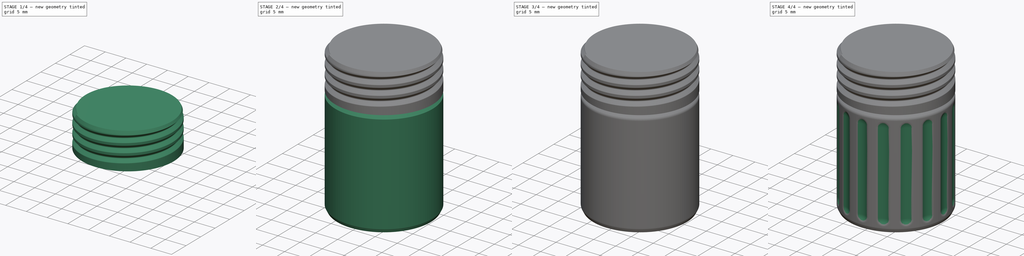
[diagram: build sequence overview — one tinted view per stage of 4, left to right]
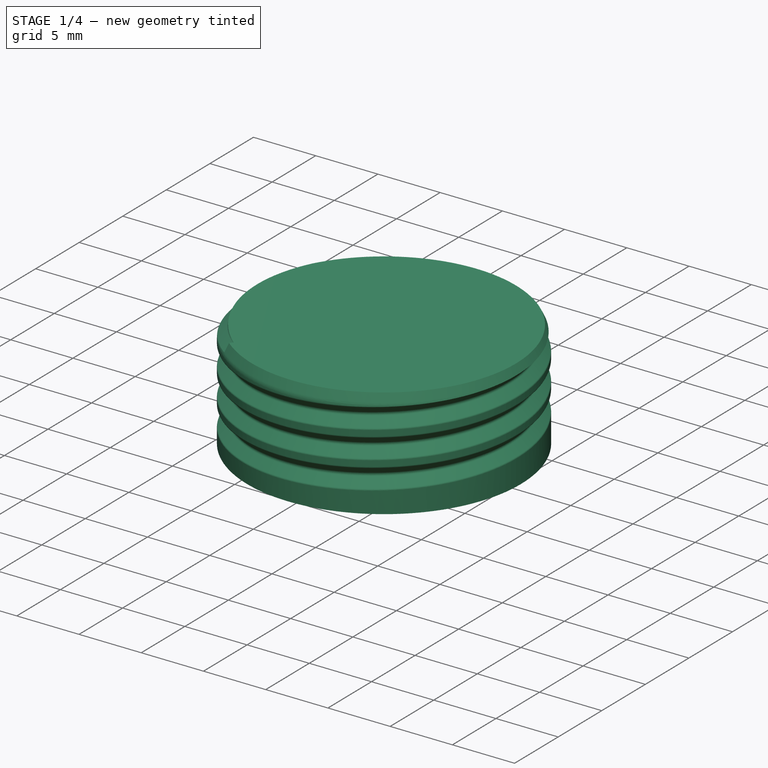
[diagram: stage 1 of 4 — iso view after this stage's code; geometry added in this stage tinted green]
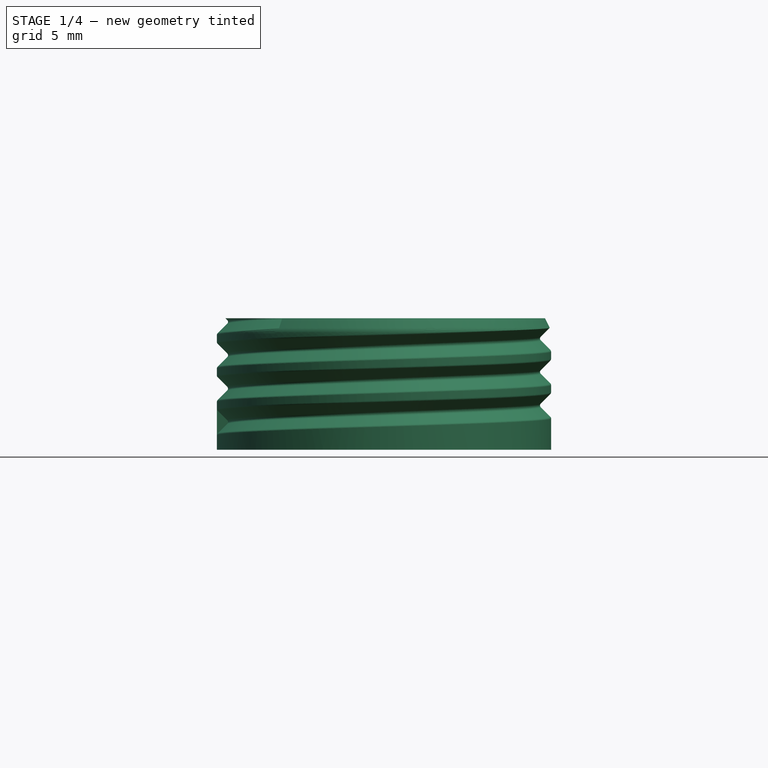
[diagram: stage 1 of 4 — front view after this stage's code; geometry added in this stage tinted green]
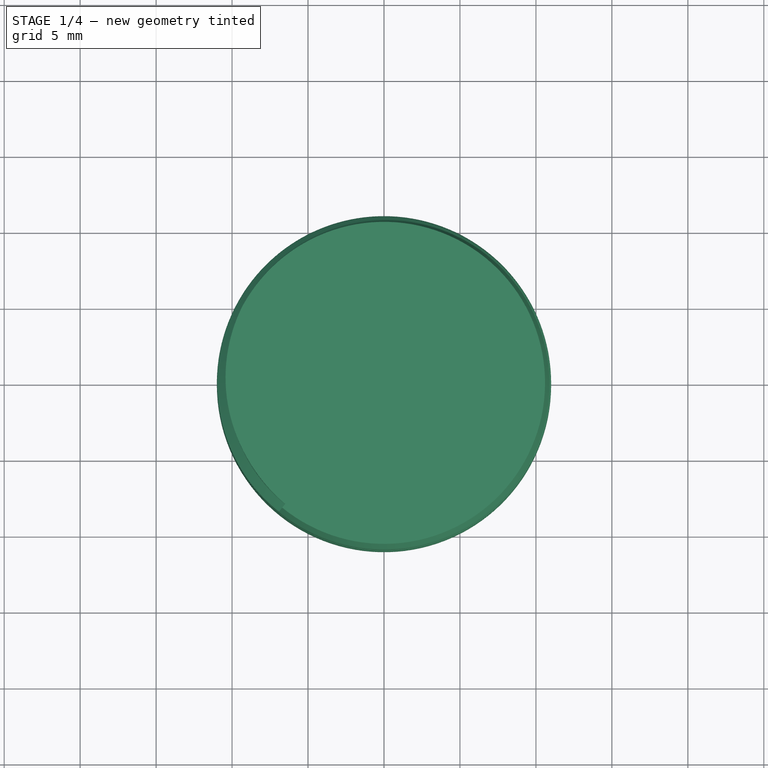
[diagram: stage 1 of 4 — top view after this stage's code; geometry added in this stage tinted green]
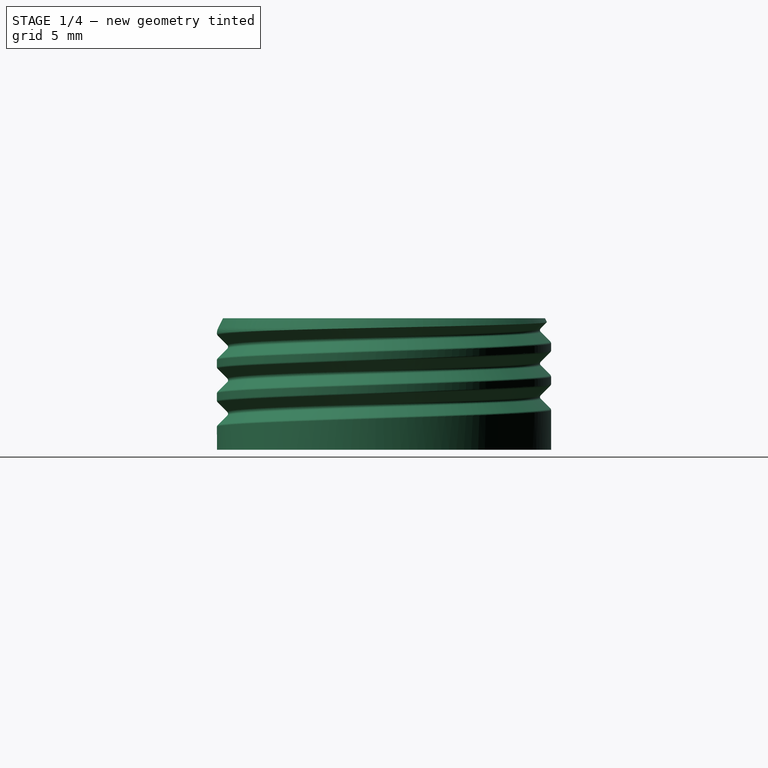
[diagram: stage 1 of 4 — right view after this stage's code; geometry added in this stage tinted green]
FCSTD DOCUMENT  (FreeCAD 1.1R44795 (Git))
Label: VaseModeJar
License: All rights reserved
LicenseURL: http://en.wikipedia.org/wiki/All_rights_reserved
objects: Sketcher::SketchObject×9, PartDesign::Body×4, App::Point×4, PartDesign::Revolution×3, PartDesign::Fillet×3, PartDesign::ShapeBinder×2, PartDesign::SubShapeBinder×2, PartDesign::SubtractiveHelix×2, Spreadsheet::Sheet×1, PartDesign::Pad×1, PartDesign::Groove×1, PartDesign::PolarPattern×1
note: 58 computed .brp shape members not serialized (recipe doc carries the construction recipe); baked Part::Feature solids carry a one-line shape summary decoded from their .brp

FEATURE [Sketcher::SketchObject] Sketch  label="Template_F"
  ArcFitTolerance = 1e-06
  AttachmentSupport = -> [XZ_Plane]
  ExternalTypes = [0]
  FullyConstrained = true
  MakeInternals = false
  MapMode = 5
  Placement = pos=(0,0,0) rot=(1,0,0;1.5708rad)
  _ExternalGeoVersion = 0
  expr: .Constraints.BottomSlopeHeight = <<Spreadsheet>>.WallThickness + <<Spreadsheet>>.Tolerance
  expr: .Constraints.CapBase = <<Spreadsheet>>.Diameter / 2
  expr: .Constraints.Height = <<Spreadsheet>>.BottomHeight + <<Spreadsheet>>.TopHeight
  expr: .Constraints.NeckBase = <<Spreadsheet>>.Diameter / 2 - <<Spreadsheet>>.WallThickness - <<Spreadsheet>>.Tolerance
  expr: Constraints[11] = <<Spreadsheet>>.TopHeight + <<Spreadsheet>>.BaseThickness
  expr: Constraints[12] = <<Spreadsheet>>.TopHeight + <<Spreadsheet>>.BaseThickness - <<Spreadsheet>>.Tolerance
  expr: Constraints[20] = <<Spreadsheet>>.BottomHeight - <<Spreadsheet>>.BaseThickness
  expr: Constraints[23] = <<Spreadsheet>>.TopHeight - <<Spreadsheet>>.BaseThickness
  expr: Constraints[31] = <<Spreadsheet>>.Diameter / 2 - <<Spreadsheet>>.BaseThickness / 2
  expr: Constraints[35] = <<Spreadsheet>>.TopHeight
  sketch-geometry (18):
    g0: LineSegment StartX=-10.6 StartY=-24.15 StartZ=0 EndX=0 EndY=-24.15 EndZ=0
    g1: LineSegment StartX=0 StartY=8.65 StartZ=0 EndX=0 EndY=0 EndZ=0
    g2: LineSegment StartX=0 StartY=0 StartZ=0 EndX=-11 EndY=0 EndZ=0
    g3: LineSegment StartX=-10.6 StartY=8.65 StartZ=0 EndX=0 EndY=8.65 EndZ=0
    g4: LineSegment StartX=0 StartY=7.85 StartZ=0 EndX=-9.85 EndY=7.85 EndZ=0
    g5: LineSegment [constr] StartX=-11 StartY=-0.15 StartZ=0 EndX=-10.25 EndY=-0.15 EndZ=0
    g6: LineSegment [constr] StartX=-11 StartY=-0.15 StartZ=0 EndX=-11 EndY=-0.9 EndZ=0
    g7: LineSegment StartX=-11 StartY=-0.9 StartZ=0 EndX=-10.25 EndY=-0.15 EndZ=0
    g8: LineSegment StartX=-11 StartY=-0.9 StartZ=0 EndX=-11 EndY=-23.35 EndZ=0
    g9: LineSegment StartX=-11 StartY=-23.35 StartZ=0 EndX=-10.6 EndY=-24.15 EndZ=0
    g10: LineSegment StartX=-9.85 StartY=7.85 StartZ=0 EndX=-10.25 EndY=7.05 EndZ=0
    g11: LineSegment StartX=-10.25 StartY=7.05 StartZ=0 EndX=-10.25 EndY=-0.15 EndZ=0
    g12: LineSegment [constr] StartX=-11 StartY=-0.15 StartZ=0 EndX=-11 EndY=0 EndZ=0
    g13: LineSegment StartX=-11 StartY=0 StartZ=0 EndX=-11 EndY=7.85 EndZ=0
    g14: LineSegment StartX=-11 StartY=7.85 StartZ=0 EndX=-10.6 EndY=8.65 EndZ=0
    g15: LineSegment [constr] StartX=-11 StartY=7.85 StartZ=0 EndX=-9.85 EndY=7.85 EndZ=0
    g16: LineSegment StartX=0 StartY=0 StartZ=0 EndX=0 EndY=-24.15 EndZ=0
    g17: LineSegment StartX=0 StartY=-0.15 StartZ=0 EndX=-10.25 EndY=-0.15 EndZ=0
  constraints (52):
    c: Horizontal(g0)
    c: DistanceY(g0,g4) = 32  'Height'
    c: Coincident(g0,g16)
    c: Horizontal(g3)
    c: Horizontal(g4)
    c: Coincident(g14,g3)
    c: Coincident(g10,g4)
    c: Coincident(g9,g0)
    c: Coincident(g5,g6)
    c: Coincident(g5,g11)
    c: Horizontal(g5)
    c: DistanceY(g6,g14) = 8.8
    c: DistanceY(g13,g14) = 8.65
    c: Coincident(g2,g-1)  '__ANCHOR__'
    c: Coincident(g6,g8)
    c: Vertical(g6)
    c: Coincident(g7,g6)
    c: Coincident(g7,g11)
    c: Coincident(g8,g9)
    c: Vertical(g8)
    c: DistanceY(g8,g5) = 23.2
    c: Coincident(g10,g11)
    c: Vertical(g11)
    c: DistanceY(g5,g10) = 7.2
    c: DistanceX(g10,g3) = 10.25  'NeckBase'
    c: Coincident(g12,g5)
    c: Coincident(g12,g13)
    c: Vertical(g12)
    c: Coincident(g13,g14)
    c: Vertical(g13)
    c: DistanceX(g13,g3) = 11  'CapBase'
    c: DistanceX(g3,g3) = 10.6
    c: Coincident(g15,g13)
    c: Coincident(g15,g4)
    c: Horizontal(g15)
    c: DistanceY(g5,g13) = 8
    c: DistanceY(g5,g13) = 0.15
    c: DistanceY(g13,g3) = 0.8
    c: DistanceY(g6,g6) = 0.75  'BottomSlopeHeight'
    c: Vertical(g16)
    c: Horizontal(g2)
    c: Vertical(g1)
    c: Coincident(g2,g1)
    c: Coincident(g17,g5)
    c: Horizontal(g17)
    c: Coincident(g1,g16)
    c: PointOnObject(g17,g16)
    c: Coincident(g1,g3)
    c: PointOnObject(g4,g1)
    c: Coincident(g2,g12)
    c: Equal(g0,g3)
    c: Parallel(g10,g14)
FEATURE [Spreadsheet::Sheet] Spreadsheet
  cells = A1='Variant; B1='WallThickness; C1='BaseThickness; D1='Tolerance; E1='BottomHeight; F1='TopHeight; G1='Diameter; H1='Pitch; I1='PDR; J1='CapORingThickness; K1='SpiralGap; A2==hiddenref(Body.Configuration.String); B2(WallThickness)==.B4; C2(BaseThickness)==.C4; D2(Tolerance)==.D4; E2(BottomHeight)==.E4; F2(TopHeight)==.F4; G2(Diameter)==.G4; H2(Pitch)==.H4; I2(PDR)==.I4; J2(CapORingThickness)==.J4; K2(SpiralGap)==.K4; A3='Jar; B3==1 mm; C3==1.2 mm; D3==0.15 mm; E3==18 mm; F3==16 mm; G3==56 mm; H3==4.6 mm; I3=4; J3==1.2 mm; K3==0.002 mm; A4='Capsule; B4==0.6 mm; C4==0.8 mm; D4==0.15 mm; E4==24 mm; F4==8 mm; G4==22 mm; H4==2.2 mm; I4=3; J4==0 mm; K4==0.002 mm
  expr: .cells.Bind.B2.K2 = tuple(.cells; <<B>> + str(hiddenref(Body.Configuration) + 3); <<K>> + str(hiddenref(Body.Configuration) + 3))
FEATURE [PartDesign::ShapeBinder] ShapeBinder001
  Placement = pos=(0,0,0) rot=(1,0,0;1.5708rad)
  Support = -> [Sketch]
  TraceSupport = false
FEATURE [Sketcher::SketchObject] Sketch003
  ArcFitTolerance = 1e-06
  AttachmentSupport = -> [XZ_Plane002]
  ExternalGeometry = -> [ShapeBinder001]
  ExternalTypes = [0,0,0,0,0]
  FullyConstrained = true
  MakeInternals = false
  MapMode = 5
  Placement = pos=(0,0,0) rot=(1,0,0;1.5708rad)
  _ExternalGeoVersion = 0
FEATURE [PartDesign::Revolution] Revolution001
  Angle = 360
  Angle2 = 60
  Axis = (0,2e-16,1)
  Base = (0,0,0)
  FuseOrder = 1
  Placement = pos=(0,0,0) rot=(1,0,0;1.5708rad)
  Profile = -> Sketch003
  ReferenceAxis = -> Sketch003 [V_Axis]
  Suppressed = false
  Type = 0
FEATURE [PartDesign::Body] Body004  label="Bottom"
  AllowCompound = false
  Group = -> [ShapeBinder002,Binder002,Sketch008,Revolution002,Sketch009,SubtractiveHelix002,Sketch010,Revolution003,Sketch011,Fillet003,Groove001,Fillet004,PolarPattern001]
  Origin = -> Origin008
  Tip = -> PolarPattern001
FEATURE [PartDesign::Fillet] Fillet002
  Base = -> Revolution001 [Edge2]
  BaseFeature = -> Revolution001
  Placement = pos=(0,0,0) rot=(1,0,0;1.5708rad)
  Radius = 0.8
  SupportTransform = false
  Suppressed = false
  UseAllEdges = false
  expr: Radius = <<Spreadsheet>>.BaseThickness
FEATURE [PartDesign::SubtractiveHelix] SubtractiveHelix003
  Angle = 0
  Axis = (0,2e-16,1)
  Base = (0,0,0)
  BaseFeature = -> Fillet002
  Growth = 0
  HasBeenEdited = true
  Height = 6.9104
  LeftHanded = false
  Mode = 0
  Outside = false
  Pitch = 2.2
  Placement = pos=(0,0,0) rot=(1,0,0;1.5708rad)
  Profile = -> Sketch004
  ReferenceAxis = -> Sketch004 [V_Axis]
  Refine = true
  Suppressed = false
  Tolerance = 0.1
  Turns = 3.14109
  expr: Height = <<Spreadsheet>>.TopHeight - <<Template_Th>>.Constraints.CapThreadOffset - <<Spreadsheet>>.Tolerance - (<<Spreadsheet>>.CapORingThickness > 0 ? <<Template_Th>>.Constraints.CapThreadHeight + <<Spreadsheet>>.CapORingThickness : 0 mm)
  expr: Pitch = <<Spreadsheet>>.Pitch
FEATURE [PartDesign::Body] Body002  label="Top"
  AllowCompound = false
  Group = -> [ShapeBinder001,Binder001,Sketch003,Revolution001,Fillet002,Sketch004,SubtractiveHelix003]
  Origin = -> Origin002
  Tip = -> SubtractiveHelix003
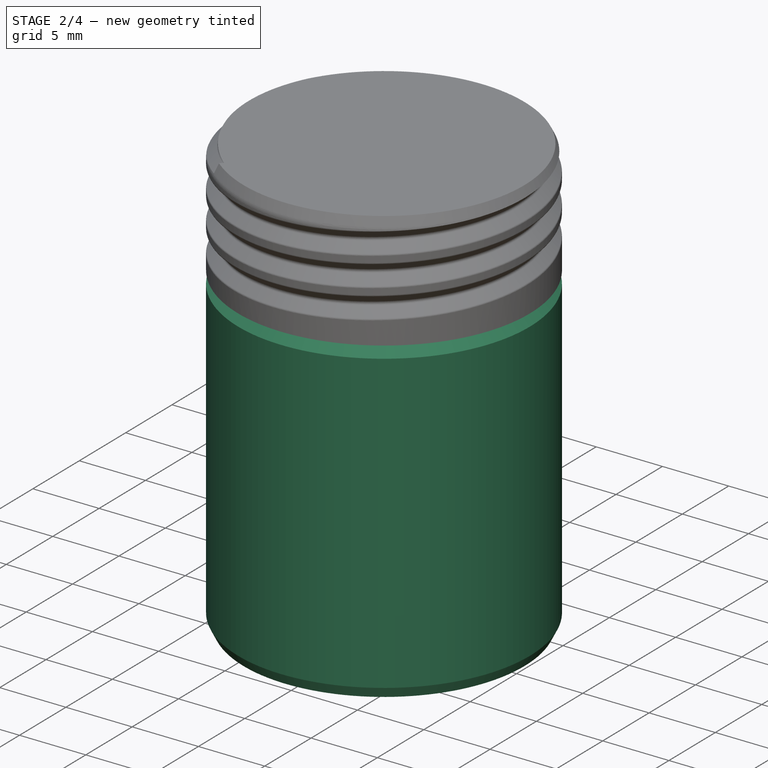
[diagram: stage 2 of 4 — iso view after this stage's code; geometry added in this stage tinted green]
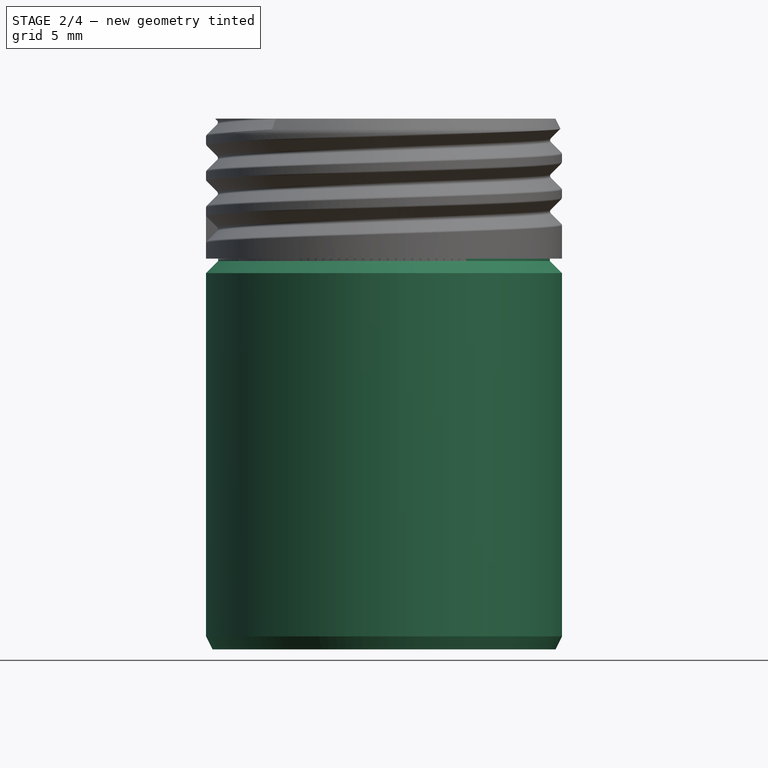
[diagram: stage 2 of 4 — front view after this stage's code; geometry added in this stage tinted green]
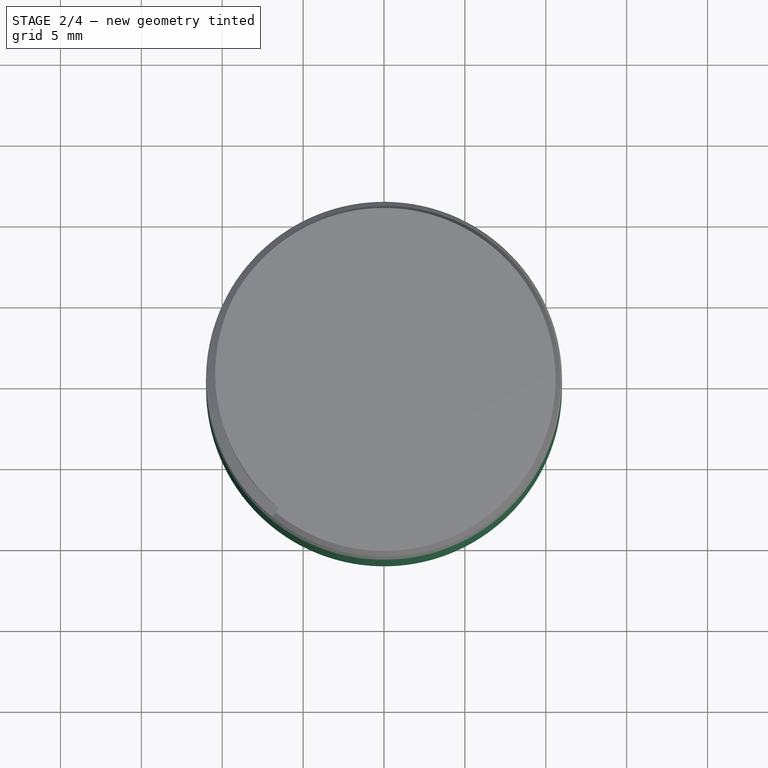
[diagram: stage 2 of 4 — top view after this stage's code; geometry added in this stage tinted green]
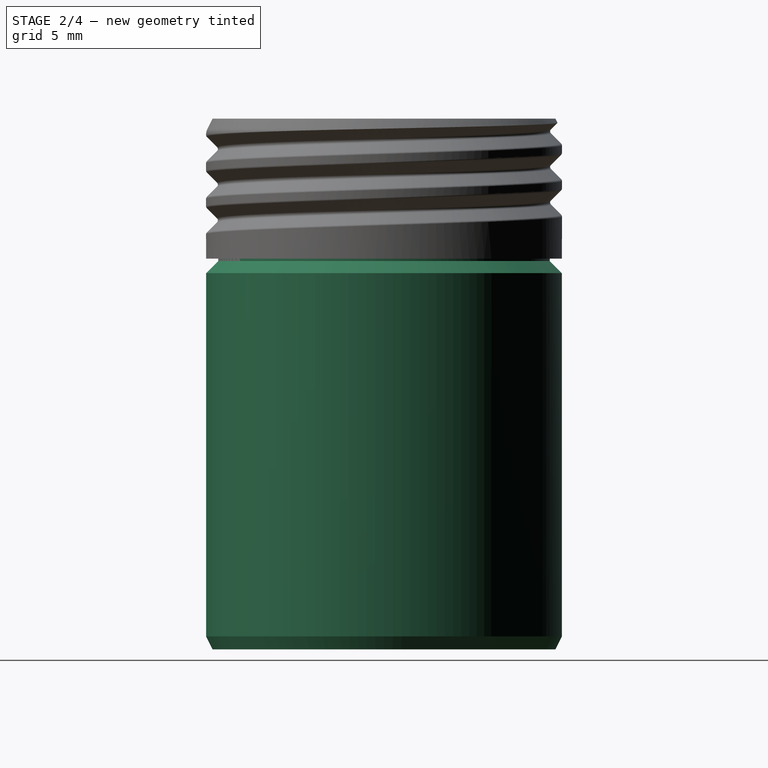
[diagram: stage 2 of 4 — right view after this stage's code; geometry added in this stage tinted green]
FEATURE [PartDesign::Body] Body003  label="ORing"
  AllowCompound = false
  Group = -> [Sketch007,Pad]
  Origin = -> Origin003
  Tip = -> Pad
FEATURE [App::Point] Origin004  label="Origin"
  Role = Origin
FEATURE [App::Point] Origin006  label="Origin"
  Role = Origin
FEATURE [App::Point] Origin007  label="Origin"
  Role = Origin
FEATURE [PartDesign::ShapeBinder] ShapeBinder002
  Placement = pos=(0,0,0) rot=(1,0,0;1.5708rad)
  Support = -> [Sketch]
  TraceSupport = false
FEATURE [PartDesign::SubShapeBinder] Binder002
  BindCopyOnChange = 0
  BindMode = 0
  ClaimChildren = false
  Context = -> Body004 [Binder002.]
  Fuse = false
  MakeFace = false
  OffsetFill = false
  OffsetIntersection = false
  OffsetJoinType = 0
  OffsetOpenResult = false
  PartialLoad = false
  Placement = pos=(-11,0,0) rot=(0,0,1;0rad)
  Relative = true
  Support = -> [Body[Sketch005.]]
  _Version = 2
  expr: .Placement.Base.x = -<<Spreadsheet>>.Diameter / 2
FEATURE [App::Point] Origin009
  Role = Origin
FEATURE [Sketcher::SketchObject] Sketch008
  ArcFitTolerance = 1e-06
  AttachmentSupport = -> [Origin008]
  ExternalGeometry = -> [ShapeBinder002]
  ExternalTypes = [0,0,0,0]
  FullyConstrained = true
  MakeInternals = true
  MapMode = 5
  Placement = pos=(0,0,0) rot=(1,0,0;1.5708rad)
  _ExternalGeoVersion = 1
  sketch-geometry (1):
    g0: LineSegment StartX=0 StartY=7.85 StartZ=0 EndX=0 EndY=-0.15 EndZ=0
  constraints (2):
    c: Coincident(g0,g-3)
    c: Coincident(g0,g-6)
FEATURE [PartDesign::Revolution] Revolution002
  Angle = 360
  Angle2 = 0
  Axis = (0,2e-16,1)
  Base = (0,0,0)
  FuseOrder = 0
  Profile = -> Sketch008
  ReferenceAxis = -> Sketch008 [V_Axis]
  Refine = true
  Suppressed = false
  Type = 0
FEATURE [Sketcher::SketchObject] Sketch009
  ArcFitTolerance = 1e-06
  AttachmentSupport = -> [Origin008]
  ExternalGeometry = -> [Binder002]
  ExternalTypes = [0,0,0,0,0,0,0,0,0,0]
  FullyConstrained = true
  MakeInternals = false
  MapMode = 5
  Placement = pos=(0,0,0) rot=(1,0,0;1.5708rad)
  _ExternalGeoVersion = 1
FEATURE [PartDesign::SubtractiveHelix] SubtractiveHelix002
  Angle = 0
  Axis = (0,2e-16,1)
  Base = (0,0,0)
  BaseFeature = -> Revolution002
  Growth = 0
  HasBeenEdited = true
  Height = 9
  LeftHanded = false
  Mode = 0
  Outside = false
  Pitch = 2.2
  Profile = -> Sketch009
  ReferenceAxis = -> Sketch009 [V_Axis]
  Refine = true
  Suppressed = false
  Tolerance = 0.1
  Turns = 4.09091
  expr: Height = <<Spreadsheet>>.TopHeight + 1 mm
  expr: Pitch = <<Spreadsheet>>.Pitch
FEATURE [Sketcher::SketchObject] Sketch010
  ArcFitTolerance = 1e-06
  AttachmentSupport = -> [Origin008]
  ExternalGeometry = -> [ShapeBinder002]
  ExternalTypes = [0,0,0,0,0]
  FullyConstrained = true
  MakeInternals = false
  MapMode = 5
  Placement = pos=(0,0,0) rot=(1,0,0;1.5708rad)
  _ExternalGeoVersion = 1
  sketch-geometry (1):
    g0: LineSegment StartX=0 StartY=-0.15 StartZ=0 EndX=0 EndY=-24.15 EndZ=0
  constraints (2):
    c: Coincident(g0,g-3)
    c: Coincident(g0,g-7)
FEATURE [PartDesign::Revolution] Revolution003
  Angle = 360
  Angle2 = 0
  Axis = (0,2e-16,1)
  Base = (0,0,0)
  BaseFeature = -> SubtractiveHelix002
  FuseOrder = 0
  Profile = -> Sketch010
  ReferenceAxis = -> Sketch010 [V_Axis]
  Refine = true
  Suppressed = false
  Type = 0
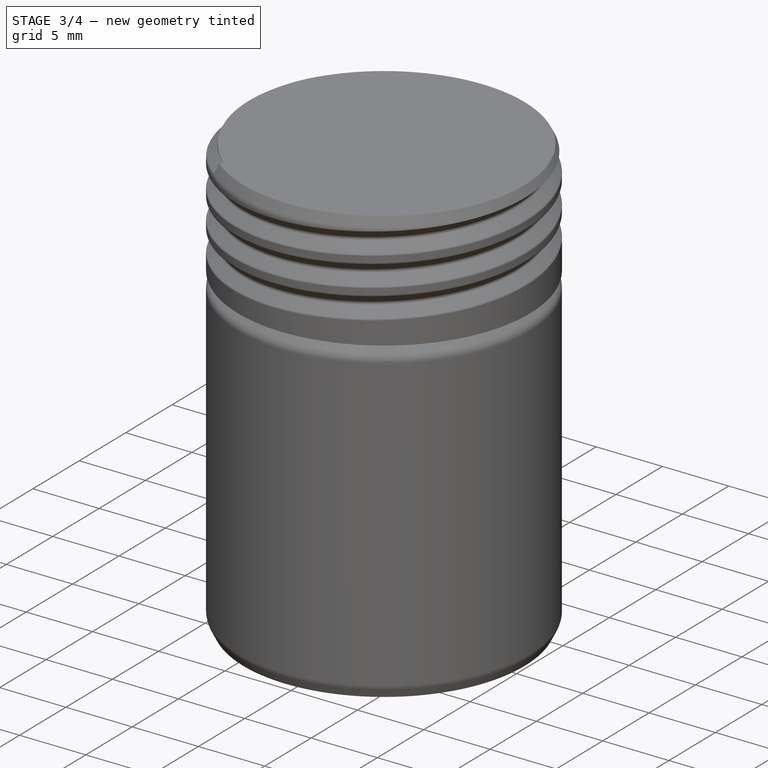
[diagram: stage 3 of 4 — iso view after this stage's code; geometry added in this stage tinted green]
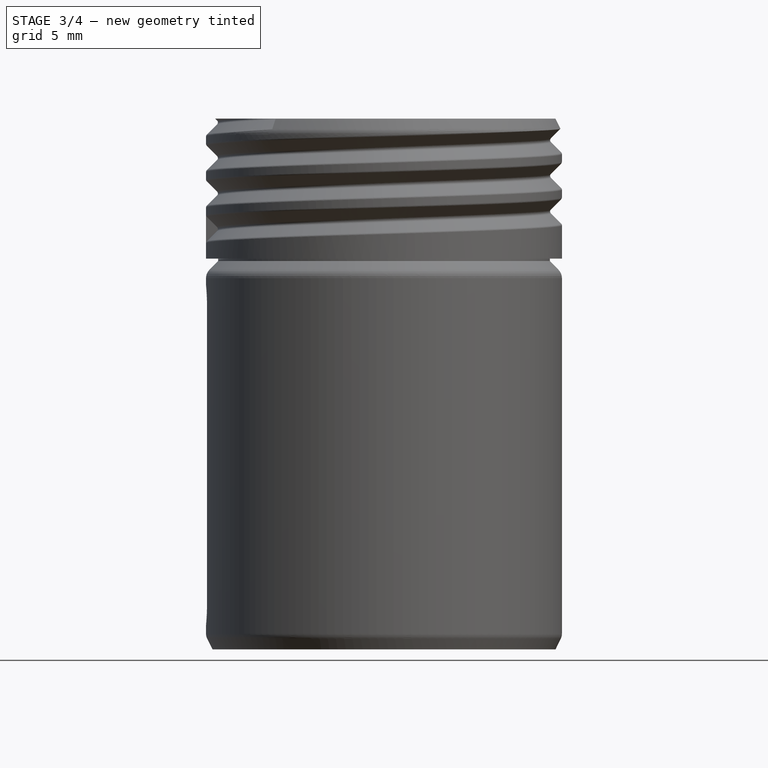
[diagram: stage 3 of 4 — front view after this stage's code; geometry added in this stage tinted green]
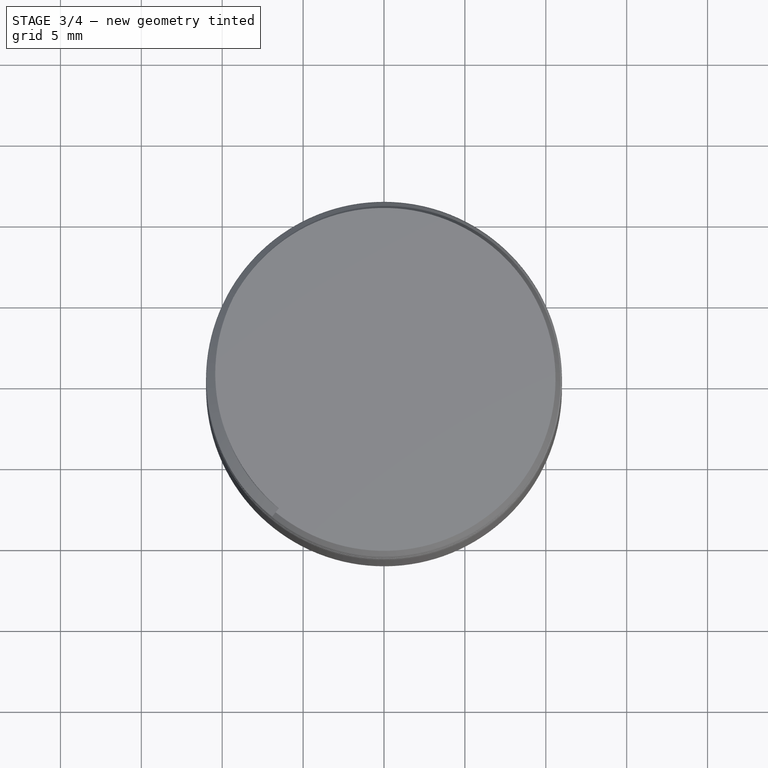
[diagram: stage 3 of 4 — top view after this stage's code; geometry added in this stage tinted green]
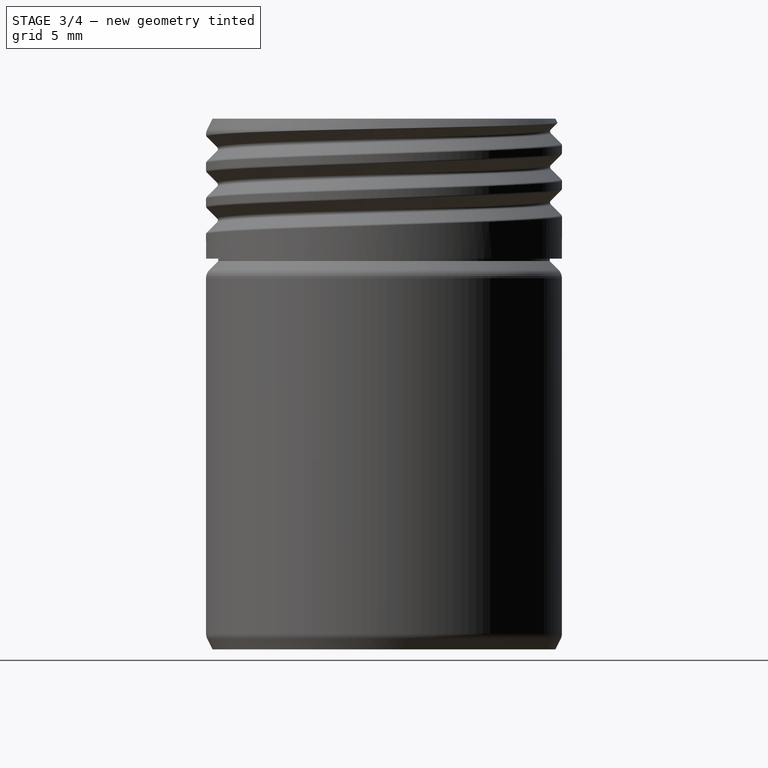
[diagram: stage 3 of 4 — right view after this stage's code; geometry added in this stage tinted green]
FEATURE [Sketcher::SketchObject] Sketch011
  ArcFitTolerance = 1e-06
  AttachmentSupport = -> [Origin008]
  ExternalGeometry = -> [Binder002]
  ExternalTypes = [0,0,0,0,0,0]
  FullyConstrained = true
  MakeInternals = false
  MapMode = 5
  Placement = pos=(0,0,0) rot=(1,0,0;1.5708rad)
  _ExternalGeoVersion = 1
FEATURE [PartDesign::Fillet] Fillet003
  Base = -> Revolution003 [Edge6,Edge19]
  BaseFeature = -> Revolution003
  Radius = 0.75
  Refine = true
  SupportTransform = false
  Suppressed = false
  UseAllEdges = false
  expr: Radius = <<Template_F>>.Constraints.BottomSlopeHeight
FEATURE [PartDesign::Groove] Groove001
  Angle = 360
  Angle2 = 0
  Axis = (0,-2e-16,-1)
  Base = (-12.8239,-4e-16,-1.65)
  BaseFeature = -> Fillet003
  Profile = -> Sketch011
  ReferenceAxis = -> Sketch011 [Edge6]
  Refine = true
  Reversed = true
  Suppressed = false
  Type = 0
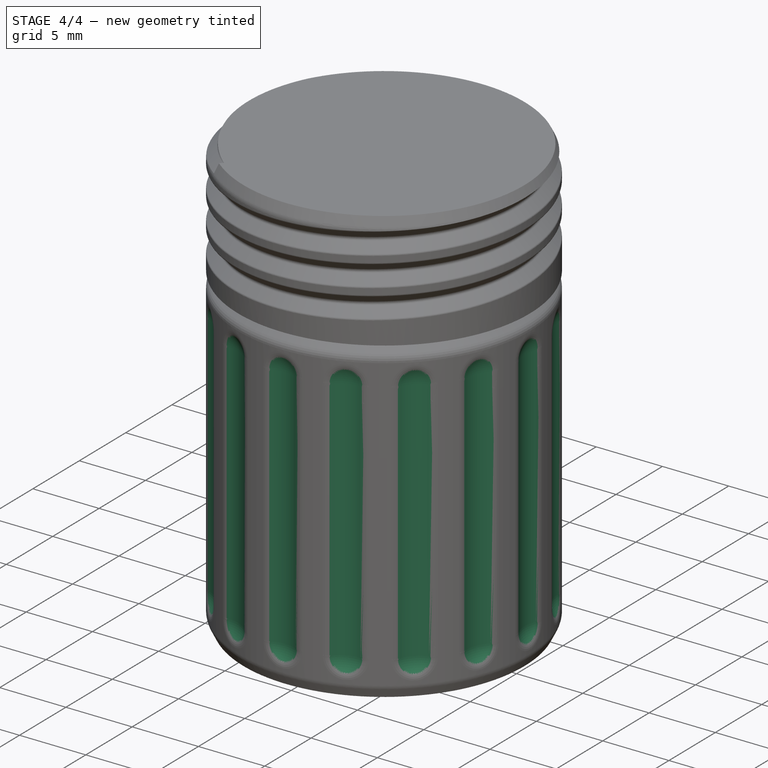
[diagram: stage 4 of 4 — iso view after this stage's code; geometry added in this stage tinted green]
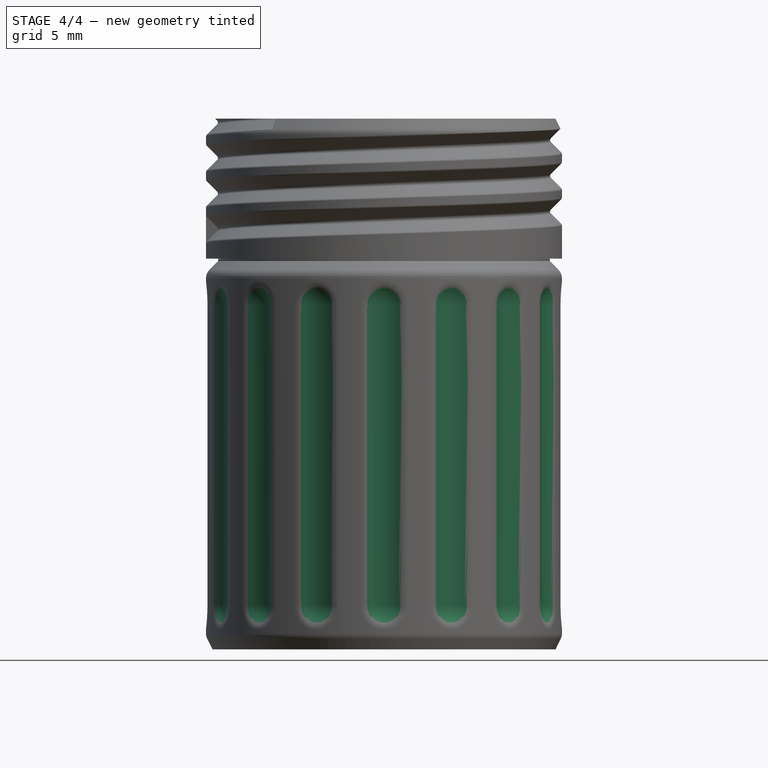
[diagram: stage 4 of 4 — front view after this stage's code; geometry added in this stage tinted green]
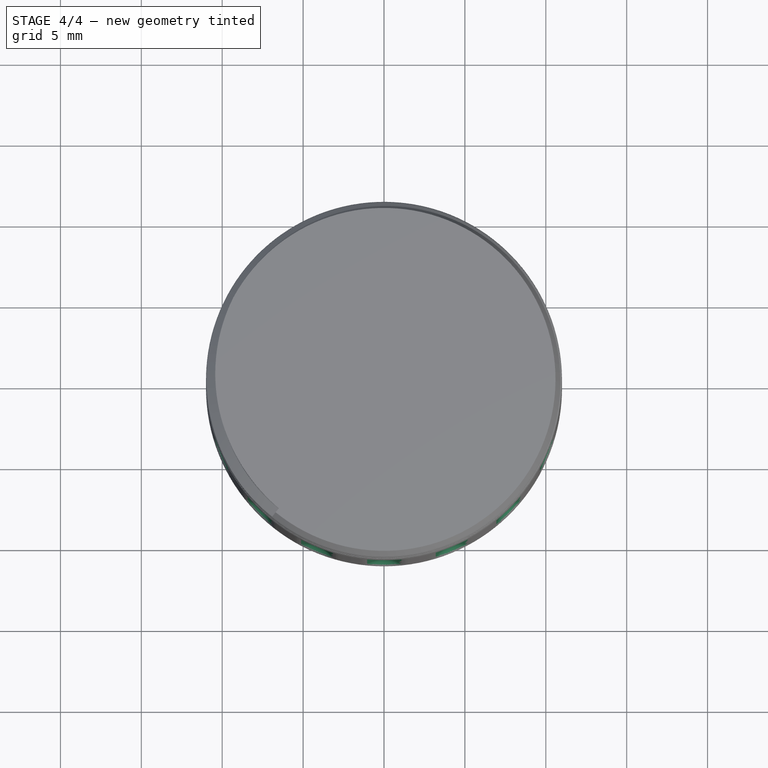
[diagram: stage 4 of 4 — top view after this stage's code; geometry added in this stage tinted green]
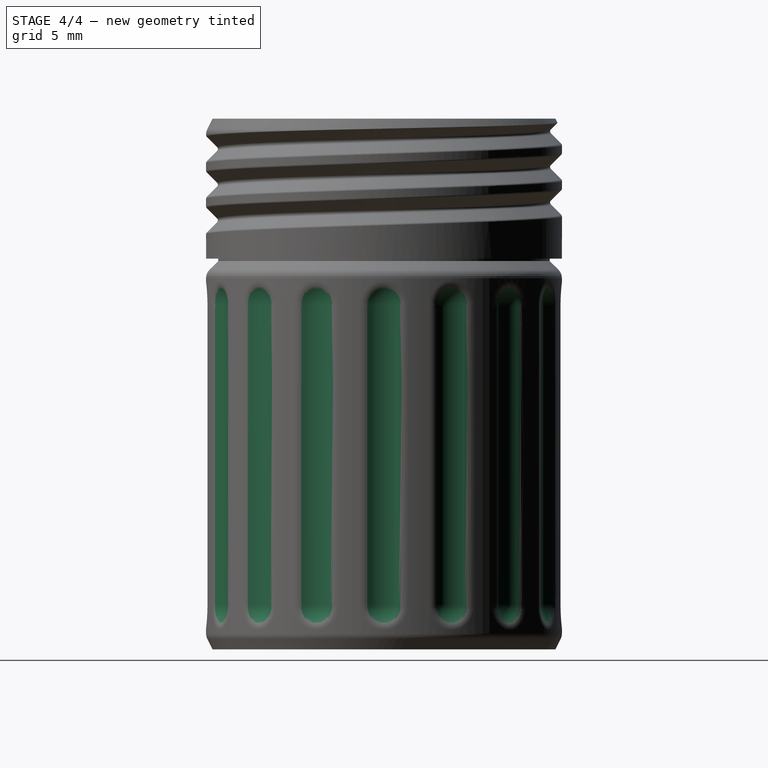
[diagram: stage 4 of 4 — right view after this stage's code; geometry added in this stage tinted green]
FEATURE [Sketcher::SketchObject] Sketch005  label="Template_Th"
  ArcFitTolerance = 1e-06
  AttachmentSupport = -> [XZ_Plane]
  ExternalGeometry = -> [Sketch]
  ExternalTypes = [0]
  FullyConstrained = true
  MakeInternals = false
  MapMode = 5
  Placement = pos=(0,0,0) rot=(1,0,0;1.5708rad)
  _ExternalGeoVersion = 0
  expr: .Constraints.CapThreadHeight = (<<Spreadsheet>>.Pitch - <<Spreadsheet>>.SpiralGap) * 4 / 5
  expr: Constraints[38] = <<Spreadsheet>>.B3 / 2 + <<Spreadsheet>>.Tolerance
  expr: Constraints[5] = <<Spreadsheet>>.Pitch - <<Spreadsheet>>.SpiralGap
  expr: Constraints[77] = <<Spreadsheet>>.WallThickness + <<Spreadsheet>>.Tolerance
  expr: Constraints[80] = <<Spreadsheet>>.Pitch / <<Spreadsheet>>.PDR
  expr: Constraints[83] = <<Spreadsheet>>.Diameter / 10
  expr: Constraints[90] = <<Spreadsheet>>.BottomHeight - <<Template_F>>.Constraints.BottomSlopeHeight * 4
  expr: Constraints[94] = <<Spreadsheet>>.BottomHeight - <<Template_F>>.Constraints.BottomSlopeHeight * 2
  sketch-geometry (44):
    g0: ArcOfCircle CenterX=0.926077 CenterY=2.048 CenterZ=0 NormalX=0 NormalY=0 NormalZ=1 AngleXU=0 Radius=0.176077 StartAngle=3.14159 EndAngle=3.92699
    g1: ArcOfCircle CenterX=0.926077 CenterY=-0.15 CenterZ=0 NormalX=0 NormalY=0 NormalZ=1 AngleXU=0 Radius=0.176077 StartAngle=2.35619 EndAngle=3.14159
    g2: LineSegment [constr] StartX=1.48333 StartY=-0.15 StartZ=0 EndX=0.75 EndY=-0.15 EndZ=0
    g3: LineSegment [constr] StartX=1.48333 StartY=2.048 StartZ=0 EndX=0.75 EndY=2.048 EndZ=0
    g4: ArcOfCircle CenterX=0.176077 CenterY=0.9396 CenterZ=0 NormalX=0 NormalY=0 NormalZ=1 AngleXU=0 Radius=0.176077 StartAngle=2.35619 EndAngle=3.14159
    g5: ArcOfCircle CenterX=0.557257 CenterY=1.8188 CenterZ=0 NormalX=0 NormalY=0 NormalZ=1 AngleXU=0 Radius=0.176077 StartAngle=5.49779 EndAngle=7.06858
    g6: ArcOfCircle CenterX=0.176077 CenterY=2.698 CenterZ=0 NormalX=0 NormalY=0 NormalZ=1 AngleXU=0 Radius=0.176077 StartAngle=3.14159 EndAngle=3.92699
    g7: LineSegment [constr] StartX=0 StartY=0.9396 StartZ=0 EndX=0 EndY=2.698 EndZ=0
    g8: LineSegment StartX=0.0515717 StartY=2.5735 StartZ=0 EndX=0.681762 EndY=1.9433 EndZ=0
    g9: LineSegment StartX=0.0515717 StartY=1.0641 StartZ=0 EndX=0.681762 EndY=1.6943 EndZ=0
    g10: LineSegment [constr] StartX=0 StartY=2.698 StartZ=0 EndX=0.733333 EndY=2.698 EndZ=0
    g11: LineSegment [constr] StartX=0.733333 StartY=2.698 StartZ=0 EndX=0.733333 EndY=0.9396 EndZ=0
    g12: LineSegment [constr] StartX=0.733333 StartY=0.9396 StartZ=0 EndX=0 EndY=0.9396 EndZ=0
    g13: ArcOfCircle CenterX=1.30726 CenterY=1.1688 CenterZ=0 NormalX=0 NormalY=0 NormalZ=1 AngleXU=0 Radius=0.176077 StartAngle=0 EndAngle=0.785398
    g14: ArcOfCircle CenterX=1.30726 CenterY=0.7292 CenterZ=0 NormalX=0 NormalY=0 NormalZ=1 AngleXU=0 Radius=0.176077 StartAngle=5.49779 EndAngle=6.28319
    g15: LineSegment [constr] StartX=1.48333 StartY=2.048 StartZ=0 EndX=1.48333 EndY=1.1688 EndZ=0
    g16: LineSegment StartX=1.48333 StartY=1.1688 StartZ=0 EndX=1.48333 EndY=0.7292 EndZ=0
    g17: LineSegment [constr] StartX=1.48333 StartY=0.7292 StartZ=0 EndX=1.48333 EndY=-0.15 EndZ=0
    g18: LineSegment StartX=0.801572 StartY=-0.025495 StartZ=0 EndX=1.43176 EndY=0.604695 EndZ=0
    g19: LineSegment StartX=0.801572 StartY=1.9235 StartZ=0 EndX=1.43176 EndY=1.2933 EndZ=0
    g20: LineSegment StartX=0.376117 StartY=-2.88022 StartZ=0 EndX=0.376117 EndY=-21.4198 EndZ=0
    g21: LineSegment StartX=-1.82388 StartY=-1.65 StartZ=0 EndX=-1.82388 EndY=-22.65 EndZ=0
    g22: ArcOfCircle CenterX=-1.82388 CenterY=-2.88022 CenterZ=0 NormalX=0 NormalY=0 NormalZ=1 AngleXU=0 Radius=2.2 StartAngle=0 EndAngle=0.593412
    g23: ArcOfCircle CenterX=-1.82388 CenterY=-21.4198 CenterZ=0 NormalX=0 NormalY=0 NormalZ=1 AngleXU=0 Radius=2.2 StartAngle=5.68977 EndAngle=6.28319
    g24: LineSegment [constr] StartX=-1.82388 StartY=-0.15 StartZ=0 EndX=0 EndY=-0.15 EndZ=0
    g25: LineSegment [constr] StartX=-1.82388 StartY=-24.15 StartZ=0 EndX=0 EndY=-24.15 EndZ=0
    g26: LineSegment [constr] StartX=-1.82388 StartY=-2.88022 StartZ=0 EndX=0 EndY=-1.65 EndZ=0
    g27: LineSegment [constr] StartX=-1.82388 StartY=-2.88022 StartZ=0 EndX=0.376117 EndY=-2.88022 EndZ=0
    g28: LineSegment [constr] StartX=1.43176 StartY=1.2933 StartZ=0 EndX=1.48333 EndY=1.24173 EndZ=0
    g29: LineSegment [constr] StartX=1.43176 StartY=0.604695 StartZ=0 EndX=1.48333 EndY=0.656267 EndZ=0
    g30: LineSegment [constr] StartX=0.75 StartY=2.048 StartZ=0 EndX=0.75 EndY=-0.15 EndZ=0
    g31: LineSegment StartX=0.75 StartY=-0.15 StartZ=0 EndX=0.55 EndY=-0.15 EndZ=0
    g32: LineSegment [constr] StartX=0 StartY=-0.15 StartZ=0 EndX=0 EndY=0.9396 EndZ=0
    g33: LineSegment [constr] StartX=0 StartY=-0.15 StartZ=0 EndX=0 EndY=-24.15 EndZ=0
    g34: LineSegment [constr] StartX=-1.82388 StartY=-24.15 StartZ=0 EndX=-1.82388 EndY=-22.65 EndZ=0
    g35: LineSegment [constr] StartX=-1.82388 StartY=-1.65 StartZ=0 EndX=-1.82388 EndY=-0.15 EndZ=0
    g36: LineSegment StartX=-1.82388 StartY=-1.65 StartZ=0 EndX=0 EndY=-1.65 EndZ=0
    g37: LineSegment StartX=-1.82388 StartY=-22.65 StartZ=0 EndX=0 EndY=-22.65 EndZ=0
    g38: LineSegment StartX=0.75 StartY=2.048 StartZ=0 EndX=0.55 EndY=2.048 EndZ=0
    g39: LineSegment [constr] StartX=0.55 StartY=-0.15 StartZ=0 EndX=0 EndY=-0.15 EndZ=0
    g40: LineSegment StartX=0.55 StartY=2.048 StartZ=0 EndX=0.55 EndY=-0.15 EndZ=0
    g41: LineSegment StartX=0 StartY=2.698 StartZ=0 EndX=-0.2 EndY=2.698 EndZ=0
    g42: LineSegment StartX=0 StartY=0.9396 StartZ=0 EndX=-0.2 EndY=0.9396 EndZ=0
    g43: LineSegment StartX=-0.2 StartY=2.698 StartZ=0 EndX=-0.2 EndY=0.9396 EndZ=0
  constraints (120):
    c: Coincident(g2,g17)
    c: Horizontal(g2)
    c: Coincident(g3,g15)
    c: Horizontal(g3)
    c: Radius(g1) = 0.176077
    c: DistanceY(g17,g15) = 2.198
    c: Equal(g4,g6)
    c: Coincident(g2,g1)
    c: Coincident(g3,g0)
    c: Equal(g4,g5)
    c: Vertical(g7)
    c: Tangent(g4,g7) = 1.5708
    c: Tangent(g6,g7) = 1.5708
    c: Tangent(g4,g9) = 1.5708
    c: Tangent(g9,g5) = -1.5708
    c: Tangent(g5,g8) = 1.5708
    c: Tangent(g8,g6) = -1.5708
    c: Angle(g9,g7) = 0.785398
    c: Coincident(g6,g10)
    c: Horizontal(g10)
    c: Coincident(g10,g11)
    c: Vertical(g11)
    c: Coincident(g11,g12)
    c: Coincident(g12,g4)
    c: Horizontal(g12)
    c: Tangent(g11,g5)
    c: DistanceY(g7,g7) = 1.7584  'CapThreadHeight'
    c: Equal(g9,g8)
    c: Equal(g13,g14)
    c: Coincident(g15,g16)
    c: Vertical(g15)
    c: Coincident(g16,g17)
    c: Vertical(g16)
    c: Vertical(g17)
    c: Equal(g1,g13)
    c: Tangent(g0,g19) = -1.5708
    c: Tangent(g1,g18) = 1.5708
    c: Equal(g10,g3)
    c: DistanceY(g0,g6) = 0.65
    c: Vertical(g20)
    c: Vertical(g21)
    c: PointOnObject(g22,g21)
    c: PointOnObject(g23,g21)
    c: Tangent(g20,g23) = 1.5708
    c: Horizontal(g24)
    c: Horizontal(g25)
    c: DistanceX(g25,g20) = 0.376117
    c: Coincident(g26,g22)
    c: Coincident(g27,g22)
    c: Coincident(g27,g20)
    c: Horizontal(g27)
    c: Angle(g27,g26) = 0.593412
    c: Coincident(g22,g20)
    c: Equal(g1,g4)
    c: Equal(g14,g0)
    c: Tangent(g13,g19) = 1.5708
    c: Tangent(g14,g18) = -1.5708
    c: Equal(g17,g15)
    c: Tangent(g16,g14) = 1.5708
    c: Tangent(g16,g13) = 1.5708
    c: Coincident(g28,g13)
    c: PointOnObject(g28,g15)
    c: Parallel(g28,g19)
    c: Coincident(g29,g14)
    c: PointOnObject(g29,g17)
    c: Parallel(g29,g18)
    c: Vertical(g30)
    c: Tangent(g0,g30) = -1.5708
    c: Tangent(g1,g30) = -1.5708
    c: Coincident(g31,g1)
    c: Coincident(g32,g39)
    c: Coincident(g32,g4)
    c: Vertical(g32)
    c: PointOnObject(g6,g-2)  '__ANCHOR__'
    c: Coincident(g33,g24)
    c: Coincident(g33,g25)
    c: DistanceY(g-1,g4) = 0.9396  'CapThreadOffset'
    c: DistanceX(g39,g31) = 0.75
    c: Parallel(g18,g9)
    c: DistanceY(g16,g16) = 0.4396
    c: DistanceX(g2,g2) = 0.733333
    c: Coincident(g24,g39)
    c: Coincident(g25,g-3)
    c: DistanceX(g25,g20) = 2.2
    c: Coincident(g34,g25)
    c: Coincident(g34,g21)
    c: Vertical(g34)
    c: Coincident(g35,g21)
    c: Coincident(g35,g24)
    c: Vertical(g35)
    c: DistanceY(g21,g21) = 21
    c: PointOnObject(g23,g33)
    c: PointOnObject(g22,g33)
    c: Coincident(g26,g22)
    c: DistanceY(g21,g24) = 22.5
    c: Coincident(g36,g21)
    c: Coincident(g36,g22)
    c: Horizontal(g36)
    c: Coincident(g37,g21)
    c: Coincident(g37,g23)
    c: Horizontal(g37)
    c: DistanceY(g20,g22) = 1.23022
    c: Coincident(g38,g0)
    c: Horizontal(g38)
    c: Horizontal(g31)
    c: Horizontal(g39)
    c: Coincident(g31,g39)
    c: PointOnObject(g-6,g24)
    c: Coincident(g40,g38)
    c: Coincident(g40,g31)
    c: Vertical(g40)
    c: DistanceX(g31,g31) = 0.2
    c: Coincident(g41,g6)
    c: Horizontal(g41)
    c: Coincident(g42,g4)
    c: Horizontal(g42)
    c: Coincident(g43,g41)
    c: Coincident(g43,g42)
    c: Vertical(g43)
    c: Equal(g42,g31)
FEATURE [PartDesign::Body] Body  label="Template"
  AllowCompound = false
  Configuration = 1
  Group = -> [Sketch,Sketch005]
  Origin = -> Origin
  expr: .Configuration.Enum = Spreadsheet.cells[<<A3:|>>]
FEATURE [PartDesign::SubShapeBinder] Binder001
  BindCopyOnChange = 0
  BindMode = 0
  ClaimChildren = false
  Context = -> Body002 [Binder001.]
  Fuse = false
  MakeFace = false
  OffsetFill = false
  OffsetIntersection = false
  OffsetJoinType = 0
  OffsetOpenResult = false
  PartialLoad = false
  Placement = pos=(-11,0,0) rot=(0,0,1;0rad)
  Relative = true
  Support = -> [Body[Sketch005.]]
  _Version = 2
  expr: .Placement.Base.x = -<<Spreadsheet>>.Diameter / 2
FEATURE [Sketcher::SketchObject] Sketch004
  ArcFitTolerance = 1e-06
  AttachmentSupport = -> [XZ_Plane002]
  ExternalGeometry = -> [Binder001]
  ExternalTypes = [0,0,0,0,0,0,0,0]
  FullyConstrained = true
  MakeInternals = false
  MapMode = 5
  Placement = pos=(0,0,0) rot=(1,0,0;1.5708rad)
  _ExternalGeoVersion = 0
FEATURE [Sketcher::SketchObject] Sketch007
  ArcFitTolerance = 1e-06
  AttachmentSupport = -> [XY_Plane003]
  ExternalTypes = [0]
  FullyConstrained = true
  MakeInternals = false
  MapMode = 5
  _ExternalGeoVersion = 0
  expr: Constraints[1] = <<Spreadsheet>>.Diameter - <<Spreadsheet>>.B3 * 2 - <<Spreadsheet>>.Tolerance * 2
  sketch-geometry (3):
    g0: Circle CenterX=0 CenterY=0 CenterZ=0 NormalX=0 NormalY=0 NormalZ=1 AngleXU=0 Radius=9.85
    g1: Circle CenterX=0 CenterY=0 CenterZ=0 NormalX=0 NormalY=0 NormalZ=1 AngleXU=0 Radius=5.85
    g2: LineSegment [constr] StartX=5.85 StartY=0 StartZ=0 EndX=9.85 EndY=0 EndZ=0
  constraints (8):
    c: Coincident(g0,g-1)
    c: Diameter(g0) = 19.7
    c: Coincident(g1,g0)
    c: PointOnObject(g2,g1)
    c: PointOnObject(g2,g0)
    c: Horizontal(g2)
    c: PointOnObject(g0,g2)
    c: DistanceX(g2,g2) = 4
FEATURE [PartDesign::Pad] Pad
  Direction = (0,0,1)
  Length = 1
  Length2 = 10
  Profile = -> Sketch007
  ReferenceAxis = -> Sketch007 [N_Axis]
  Refine = true
  SideType = 0
  Suppressed = false
  Type = 0
  Type2 = 0
FEATURE [PartDesign::Fillet] Fillet004
  Base = -> Groove001 [Edge16]
  BaseFeature = -> Groove001
  Radius = 1
  Refine = true
  SupportTransform = false
  Suppressed = false
  UseAllEdges = false
  expr: Radius = <<Spreadsheet>>.B3
FEATURE [PartDesign::PolarPattern] PolarPattern001
  Angle = 360
  Axis = -> Z_Axis004
  BaseFeature = -> Fillet004
  Mode = 0
  Occurrences = 16
  Offset = 120
  Originals = -> [Fillet004,Groove001]
  Refine = true
  SpacingPattern = [0]
  Spacings = [-1,-1,-1,-1,-1,-1,-1,-1,-1,-1,-1,-1,-1,-1,-1]
  Suppressed = false
  TransformMode = 0
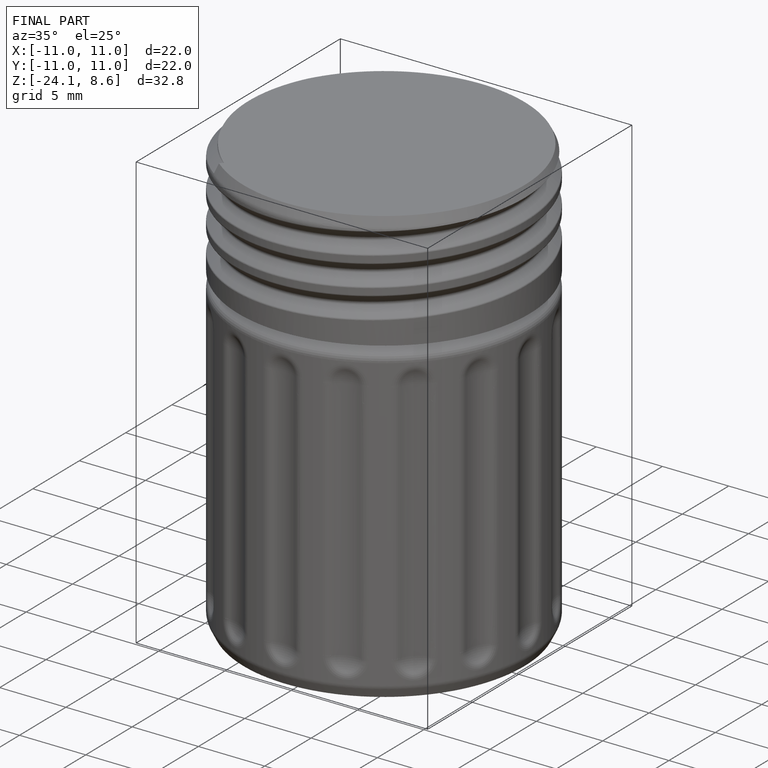
[diagram: finished part — iso view with bounding-box wireframe]
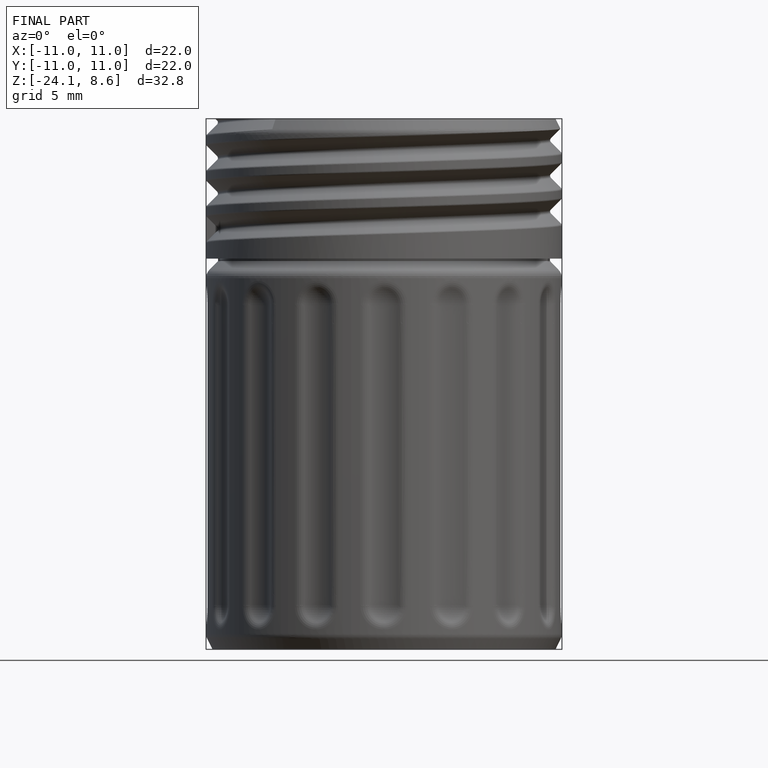
[diagram: finished part — front view with bounding-box wireframe]
